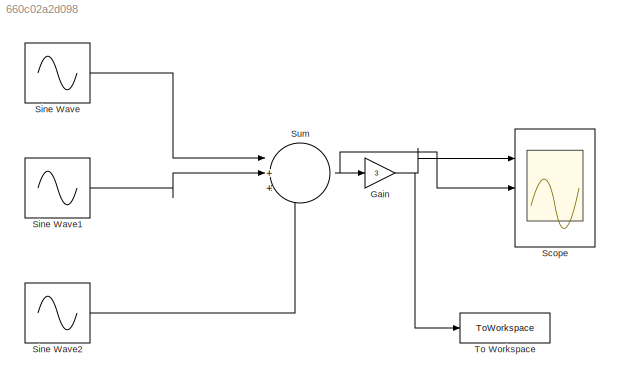
MODEL slx_660c02a2d098
KIND model
CONFIG AbsTol = auto
CONFIG EnableMultiTasking = off
CONFIG FixedStep = auto
CONFIG MaxStep = 0.01
CONFIG MinStep = auto
CONFIG RelTol = 1e-3
CONFIG SampleTimeConstraint = Unconstrained
CONFIG SolverName = ode45
CONFIG StartTime = 0.0
CONFIG StopTime = 10.0
BLOCK [Gain] Gain
  Gain = 3
BLOCK [Scope] Scope
  Floating = off
  NumInputPorts = 3
  Ports = [3]
  ScopeSpecificationString = Simulink.scopes.TimeScopeBlockCfg('CurrentConfiguration', extmgr.ConfigurationSet(extmgr.Configuration('Core','General UI',true),extmgr.Configuration('Core','Source UI',true),extmgr.Configuration('Sources','WiredSimulink',true),extmgr.Configuration('Visuals','Time Domain',true,'SerializedDisplays',{struct('MinYLimReal','-10.32005','MaxYLimReal','10.31994','YLabelReal','','MinYLimMag','0.00000','Ma...<+1371ch>
BLOCK [Sin] Sine Wave
  Frequency = 10
  Ports = [0, 1]
  SampleTime = 0
BLOCK [Sin] Sine Wave1
  Frequency = 5
  Ports = [0, 1]
  SampleTime = 0
BLOCK [Sin] Sine Wave2
  Ports = [0, 1]
  SampleTime = 0
BLOCK [Sum] Sum
  Inputs = |+++
  Ports = [3, 1]
BLOCK [ToWorkspace] To Workspace
  FixptAsFi = on
  MaxDataPoints = inf
  Ports = [1]
  SampleTime = -1
  SaveFormat = Timeseries
  VariableName = sumout
NET Gain:1 -> Scope:1, To Workspace:1
LINE Sine Wave1:1 -> Sum:2
LINE Sine Wave2:1 -> Sum:3
LINE Sine Wave:1 -> Sum:1
NET Sum:1 -> Gain:1, Scope:2
note: NET lines group one-source signal fan-out (src -> all destinations, sorted); 1:1 wires keep LINE
